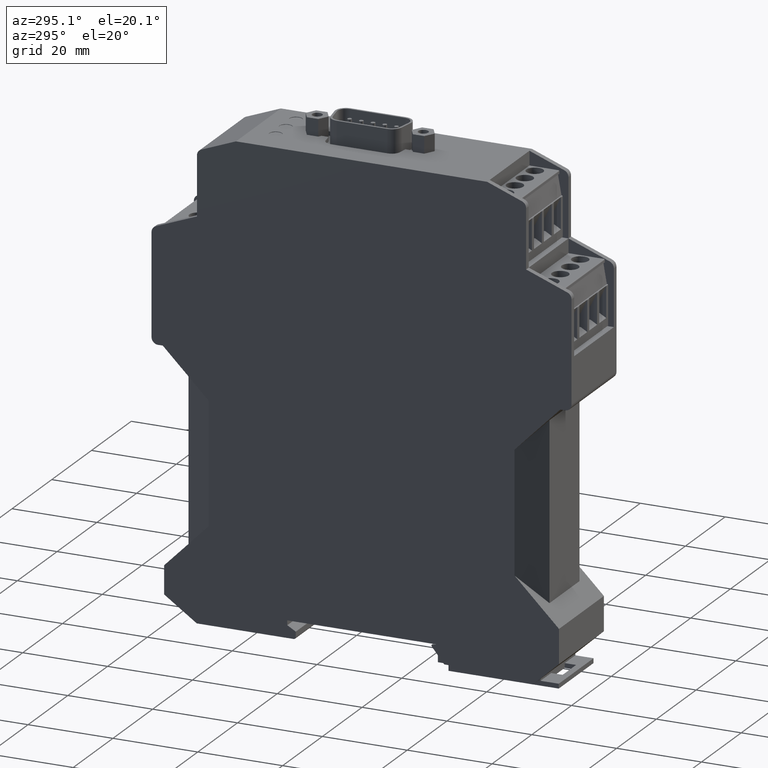
[diagram: clean part render]
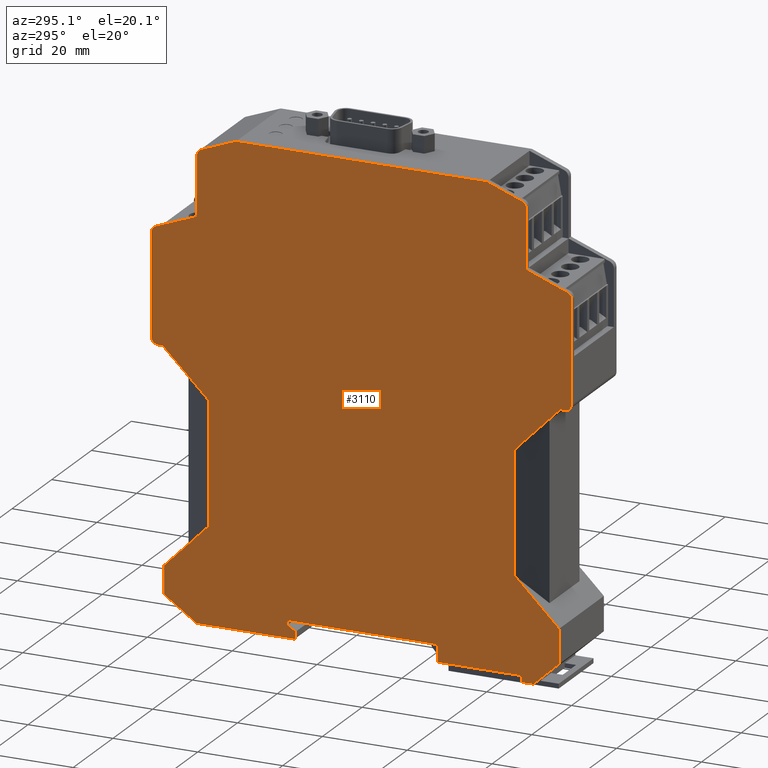
[diagram: same view with one face highlighted and labeled with its STEP entity id]
A machine part, auxiliary view. The second image highlights one B-rep face of the part: STEP entity #3110.
In plain terms, the highlighted planar face has unit normal (-1, 0, -0).
Its self-contained STEP definition (entity closure, byte-faithful):
#10=CARTESIAN_POINT('',(-1.39195321935404E-11,88.500000000059,
3.5527136788005E-15));
#20=DIRECTION('',(1.22460635382238E-16,0.,-1.));
#30=DIRECTION('',(-1.,0.,-1.22460635382238E-16));
#40=AXIS2_PLACEMENT_3D('',#10,#20,#30);
#50=PLANE('',#40);
#60=CARTESIAN_POINT('',(-1.39020883780511E-11,118.362375437126,
-3.5527136788005E-15));
#70=DIRECTION('',(-0.933580426497062,-0.358367949545665,
-1.14326852209251E-16));
#80=VECTOR('',#70,1.);
#90=LINE('',#60,#80);
#100=CARTESIAN_POINT('',(-29.6000000000285,107.000000000059,
-7.105427357601E-15));
#110=VERTEX_POINT('',#100);
#120=CARTESIAN_POINT('',(-37.8375519243559,103.837900079559,
-7.105427357601E-15));
#130=VERTEX_POINT('',#120);
#140=EDGE_CURVE('',#110,#130,#90,.T.);
#150=ORIENTED_EDGE('',*,*,#140,.F.);
#160=CARTESIAN_POINT('',(-37.3000000000285,102.437529439817,
-7.105427357601E-15));
#170=DIRECTION('',(0.,0.,-1.));
#180=DIRECTION('',(-1.,0.,0.));
#190=AXIS2_PLACEMENT_3D('',#160,#170,#180);
#200=CIRCLE('',#190,1.49999999999999);
#210=CARTESIAN_POINT('',(-38.8000000000142,102.437529439802,
-7.105427357601E-15));
#220=VERTEX_POINT('',#210);
#230=EDGE_CURVE('',#220,#130,#200,.T.);
#240=ORIENTED_EDGE('',*,*,#230,.T.);
#250=CARTESIAN_POINT('',(-38.8000000000142,-7.99999999993772,
-7.105427357601E-15));
#260=DIRECTION('',(0.,-1.,-0.));
#270=VECTOR('',#260,1.);
#280=LINE('',#250,#270);
#290=CARTESIAN_POINT('',(-38.8000000000142,88.5000000000611,
-7.105427357601E-15));
#300=VERTEX_POINT('',#290);
#310=EDGE_CURVE('',#220,#300,#280,.T.);
#320=ORIENTED_EDGE('',*,*,#310,.F.);
#330=CARTESIAN_POINT('',(-1.39020883780511E-11,103.367289719729,
-3.5527136788005E-15));
#340=DIRECTION('',(-0.933794721484838,-0.357809192345659,
-1.14353094909613E-16));
#350=VECTOR('',#340,1.);
#360=LINE('',#330,#350);
#370=CARTESIAN_POINT('',(-48.5367137885062,84.7691096698839,
-1.06581410364015E-14));
#380=VERTEX_POINT('',#370);
#390=EDGE_CURVE('',#300,#380,#360,.T.);
#400=ORIENTED_EDGE('',*,*,#390,.F.);
#410=CARTESIAN_POINT('',(-47.999999999988,83.3684175876566,
-1.06581410364015E-14));
#420=DIRECTION('',(0.,0.,1.));
#430=DIRECTION('',(1.,0.,0.));
#440=AXIS2_PLACEMENT_3D('',#410,#420,#430);
#450=CIRCLE('',#440,1.5);
#460=CARTESIAN_POINT('',(-49.4999999999339,83.3684175876573,
-1.06581410364015E-14));
#470=VERTEX_POINT('',#460);
#480=EDGE_CURVE('',#380,#470,#450,.T.);
#490=ORIENTED_EDGE('',*,*,#480,.F.);
#500=CARTESIAN_POINT('',(-49.4999999999075,-7.99999999993772,
-1.06581410364015E-14));
#510=DIRECTION('',(0.,-1.,-0.));
#520=VECTOR('',#510,1.);
#530=LINE('',#500,#520);
#540=CARTESIAN_POINT('',(-49.4999999999994,59.4000000000015,
-1.06581410364015E-14));
#550=VERTEX_POINT('',#540);
#560=EDGE_CURVE('',#470,#550,#530,.T.);
#570=ORIENTED_EDGE('',*,*,#560,.F.);
#580=CARTESIAN_POINT('',(-47.9999999999994,59.4000000000015,
-1.06581410364015E-14));
#590=DIRECTION('',(0.,0.,-1.));
#600=DIRECTION('',(-1.,0.,0.));
#610=AXIS2_PLACEMENT_3D('',#580,#590,#600);
#620=CIRCLE('',#610,1.5);
#630=CARTESIAN_POINT('',(-47.9999999999996,57.9000000000015,
-1.06581410364015E-14));
#640=VERTEX_POINT('',#630);
#650=EDGE_CURVE('',#640,#550,#620,.T.);
#660=ORIENTED_EDGE('',*,*,#650,.T.);
#670=CARTESIAN_POINT('',(-1.39020883780511E-11,57.8999999999968,
-3.5527136788005E-15));
#680=DIRECTION('',(1.,-9.89E-14,1.22460635382238E-16));
#690=VECTOR('',#680,1.);
#700=LINE('',#670,#690);
#710=CARTESIAN_POINT('',(-46.85,57.9000000000014,-1.06581410364015E-14))
;
#720=VERTEX_POINT('',#710);
#730=EDGE_CURVE('',#640,#720,#700,.T.);
#740=ORIENTED_EDGE('',*,*,#730,.F.);
#750=CARTESIAN_POINT('',(-1.39020883780511E-11,11.0500000000157,
-3.5527136788005E-15));
#760=DIRECTION('',(0.707106781186551,-0.707106781186544,
8.65927457071939E-17));
#770=VECTOR('',#760,1.);
#780=LINE('',#750,#770);
#790=CARTESIAN_POINT('',(-36.0499999999998,47.1000000000012,
-7.105427357601E-15));
#800=VERTEX_POINT('',#790);
#810=EDGE_CURVE('',#720,#800,#780,.T.);
#820=ORIENTED_EDGE('',*,*,#810,.F.);
#830=CARTESIAN_POINT('',(-36.0499999999999,-7.99999999993772,
-7.105427357601E-15));
#840=DIRECTION('',(0.,1.,0.));
#850=VECTOR('',#840,1.);
#860=LINE('',#830,#850);
#870=CARTESIAN_POINT('',(-36.0499999999998,18.4999999999992,
-1.06581410364015E-14));
#880=VERTEX_POINT('',#870);
#890=EDGE_CURVE('',#880,#800,#860,.T.);
#900=ORIENTED_EDGE('',*,*,#890,.T.);
#910=CARTESIAN_POINT('',(-1.39020883780511E-11,54.5499999999784,
-7.105427357601E-15));
#920=DIRECTION('',(-0.707106781186613,-0.707106781186482,
-8.65927457072016E-17));
#930=VECTOR('',#920,1.);
#940=LINE('',#910,#930);
#950=CARTESIAN_POINT('',(-46.5499999999168,8.00000000008406,
-1.06581410364015E-14));
#960=VERTEX_POINT('',#950);
#970=EDGE_CURVE('',#880,#960,#940,.T.);
#980=ORIENTED_EDGE('',*,*,#970,.F.);
#990=CARTESIAN_POINT('',(-46.5499999999168,-7.99999999993772,
-1.06581410364015E-14));
#1000=DIRECTION('',(0.,-1.,-0.));
#1010=VECTOR('',#1000,1.);
#1020=LINE('',#990,#1010);
#1030=CARTESIAN_POINT('',(-46.5499999999168,6.3575811282135E-12,
-1.77635683940025E-14));
#1040=VERTEX_POINT('',#1030);
#1050=EDGE_CURVE('',#960,#1040,#1020,.T.);
#1060=ORIENTED_EDGE('',*,*,#1050,.F.);
#1070=CARTESIAN_POINT('',(-1.39020883780511E-11,-42.3181818180724,
-1.06581410364015E-14));
#1080=DIRECTION('',(0.739940073396061,-0.672672793996183,
9.06135315328613E-17));
#1090=VECTOR('',#1080,1.);
#1100=LINE('',#1070,#1090);
#1110=CARTESIAN_POINT('',(-40.4999999999323,-5.49999999997762,
-1.4210854715202E-14));
#1120=VERTEX_POINT('',#1110);
#1130=EDGE_CURVE('',#1040,#1120,#1100,.T.);
#1140=ORIENTED_EDGE('',*,*,#1130,.F.);
#1150=CARTESIAN_POINT('',(-1.39020883780511E-11,-5.49999999997762,
-3.5527136788005E-15));
#1160=DIRECTION('',(1.,0.,1.22460635382238E-16));
#1170=VECTOR('',#1160,1.);
#1180=LINE('',#1150,#1170);
#1190=CARTESIAN_POINT('',(-37.7999999999074,-5.49999999997762,
-7.105427357601E-15));
#1200=VERTEX_POINT('',#1190);
#1210=EDGE_CURVE('',#1120,#1200,#1180,.T.);
#1220=ORIENTED_EDGE('',*,*,#1210,.F.);
#1230=CARTESIAN_POINT('',(-37.7999999999074,-7.99999999993772,
-7.105427357601E-15));
#1240=DIRECTION('',(0.,1.,0.));
#1250=VECTOR('',#1240,1.);
#1260=LINE('',#1230,#1250);
#1270=CARTESIAN_POINT('',(-37.7999999999074,-3.99999999999904,
-7.105427357601E-15));
#1280=VERTEX_POINT('',#1270);
#1290=EDGE_CURVE('',#1200,#1280,#1260,.T.);
#1300=ORIENTED_EDGE('',*,*,#1290,.F.);
#1310=CARTESIAN_POINT('',(-1.39020883780511E-11,-4.00000000000264,
-3.5527136788005E-15));
#1320=DIRECTION('',(1.,-9.53855596613063E-14,1.22460635382238E-16));
#1330=VECTOR('',#1320,1.);
#1340=LINE('',#1310,#1330);
#1350=CARTESIAN_POINT('',(-17.999999999907,-4.00000000000092,
-7.105427357601E-15));
#1360=VERTEX_POINT('',#1350);
#1370=EDGE_CURVE('',#1280,#1360,#1340,.T.);
#1380=ORIENTED_EDGE('',*,*,#1370,.F.);
#1390=CARTESIAN_POINT('',(-17.9999999999071,-7.99999999993772,
-7.105427357601E-15));
#1400=DIRECTION('',(2.13E-14,1.,2.60841153364166E-30));
#1410=VECTOR('',#1400,1.);
#1420=LINE('',#1390,#1410);
#1430=CARTESIAN_POINT('',(-17.9999999999069,7.86926079854311E-13,
-7.105427357601E-15));
#1440=VERTEX_POINT('',#1430);
#1450=EDGE_CURVE('',#1360,#1440,#1420,.T.);
#1460=ORIENTED_EDGE('',*,*,#1450,.F.);
#1470=CARTESIAN_POINT('',(-1.39020883780511E-11,7.86926079854311E-13,
-3.5527136788005E-15));
#1480=DIRECTION('',(1.,0.,1.22460635382238E-16));
#1490=VECTOR('',#1480,1.);
#1500=LINE('',#1470,#1490);
#1510=CARTESIAN_POINT('',(17.5000000000944,7.86926079854311E-13,0.));
#1520=VERTEX_POINT('',#1510);
#1530=EDGE_CURVE('',#1440,#1520,#1500,.T.);
#1540=ORIENTED_EDGE('',*,*,#1530,.F.);
#1550=CARTESIAN_POINT('',(17.5000000000945,-7.99999999993772,0.));
#1560=DIRECTION('',(4.E-16,-1.,4.89842541528951E-32));
#1570=VECTOR('',#1560,1.);
#1580=LINE('',#1550,#1570);
#1590=CARTESIAN_POINT('',(17.5000000000945,-1.09989609279391,0.));
#1600=VERTEX_POINT('',#1590);
#1610=EDGE_CURVE('',#1520,#1600,#1580,.T.);
#1620=ORIENTED_EDGE('',*,*,#1610,.F.);
#1630=CARTESIAN_POINT('',(-1.39020883780511E-11,-11.2035258036739,
-7.105427357601E-15));
#1640=DIRECTION('',(-0.86602540378446,-0.499999999999962,
-1.06054021204604E-16));
#1650=VECTOR('',#1640,1.);
#1660=LINE('',#1630,#1650);
#1670=CARTESIAN_POINT('',(15.5000000000943,-2.25459663117312,0.));
#1680=VERTEX_POINT('',#1670);
#1690=EDGE_CURVE('',#1600,#1680,#1660,.T.);
#1700=ORIENTED_EDGE('',*,*,#1690,.F.);
#1710=CARTESIAN_POINT('',(15.5000000000952,-7.99999999993772,0.));
#1720=DIRECTION('',(1.54E-13,-1.,1.88589378488646E-29));
#1730=VECTOR('',#1720,1.);
#1740=LINE('',#1710,#1730);
#1750=CARTESIAN_POINT('',(15.5000000000945,-3.49999999999909,0.));
#1760=VERTEX_POINT('',#1750);
#1770=EDGE_CURVE('',#1680,#1760,#1740,.T.);
#1780=ORIENTED_EDGE('',*,*,#1770,.F.);
#1790=CARTESIAN_POINT('',(16.0000000000943,-3.49999999999909,0.));
#1800=DIRECTION('',(0.,0.,-1.));
#1810=DIRECTION('',(-1.,0.,0.));
#1820=AXIS2_PLACEMENT_3D('',#1790,#1800,#1810);
#1830=CIRCLE('',#1820,0.499999999999808);
#1840=CARTESIAN_POINT('',(16.0000000000944,-3.99999999999914,0.));
#1850=VERTEX_POINT('',#1840);
#1860=EDGE_CURVE('',#1850,#1760,#1830,.T.);
#1870=ORIENTED_EDGE('',*,*,#1860,.T.);
#1880=CARTESIAN_POINT('',(-1.39020883780511E-11,-3.99999999999914,
-3.5527136788005E-15));
#1890=DIRECTION('',(1.,0.,1.22460635382238E-16));
#1900=VECTOR('',#1890,1.);
#1910=LINE('',#1880,#1900);
#1920=CARTESIAN_POINT('',(38.838000763677,-3.99999999999914,0.));
#1930=VERTEX_POINT('',#1920);
#1940=EDGE_CURVE('',#1850,#1930,#1910,.T.);
#1950=ORIENTED_EDGE('',*,*,#1940,.F.);
#1960=CARTESIAN_POINT('',(-1.39020883780511E-11,-31.1946609037305,
-7.105427357601E-15));
#1970=DIRECTION('',(0.819152044288986,0.573576436351054,
1.00313879818288E-16));
#1980=VECTOR('',#1970,1.);
#1990=LINE('',#1960,#1980);
#2000=CARTESIAN_POINT('',(46.5500000000977,1.40000000001026,
3.5527136788005E-15));
#2010=VERTEX_POINT('',#2000);
#2020=EDGE_CURVE('',#1930,#2010,#1990,.T.);
#2030=ORIENTED_EDGE('',*,*,#2020,.F.);
#2040=CARTESIAN_POINT('',(46.5500000000976,-7.99999999993772,
3.5527136788005E-15));
#2050=DIRECTION('',(0.,1.,0.));
#2060=VECTOR('',#2050,1.);
#2070=LINE('',#2040,#2060);
#2080=CARTESIAN_POINT('',(46.5500000000977,7.99999999999633,
3.5527136788005E-15));
#2090=VERTEX_POINT('',#2080);
#2100=EDGE_CURVE('',#2010,#2090,#2070,.T.);
#2110=ORIENTED_EDGE('',*,*,#2100,.F.);
#2120=CARTESIAN_POINT('',(-1.39020883780511E-11,54.5500000000981,
-3.5527136788005E-15));
#2130=DIRECTION('',(-0.707106781186613,0.707106781186482,
-8.65927457072016E-17));
#2140=VECTOR('',#2130,1.);
#2150=LINE('',#2120,#2140);
#2160=CARTESIAN_POINT('',(36.0500000000917,18.4999999999992,0.));
#2170=VERTEX_POINT('',#2160);
#2180=EDGE_CURVE('',#2090,#2170,#2150,.T.);
#2190=ORIENTED_EDGE('',*,*,#2180,.F.);
#2200=CARTESIAN_POINT('',(36.0500000000919,-7.99999999993772,0.));
#2210=DIRECTION('',(0.,1.,0.));
#2220=VECTOR('',#2210,1.);
#2230=LINE('',#2200,#2220);
#2240=CARTESIAN_POINT('',(36.0500000000917,47.1000000000001,0.));
#2250=VERTEX_POINT('',#2240);
#2260=EDGE_CURVE('',#2170,#2250,#2230,.T.);
#2270=ORIENTED_EDGE('',*,*,#2260,.F.);
#2280=CARTESIAN_POINT('',(-1.39020883780511E-11,11.0499999998948,
-3.5527136788005E-15));
#2290=DIRECTION('',(0.707106781186551,0.707106781186544,
8.65927457071939E-17));
#2300=VECTOR('',#2290,1.);
#2310=LINE('',#2280,#2300);
#2320=CARTESIAN_POINT('',(46.8500000000933,57.9000000000015,
3.5527136788005E-15));
#2330=VERTEX_POINT('',#2320);
#2340=EDGE_CURVE('',#2250,#2330,#2310,.T.);
#2350=ORIENTED_EDGE('',*,*,#2340,.F.);
#2360=CARTESIAN_POINT('',(-1.39020883780511E-11,57.9000000000012,
-3.5527136788005E-15));
#2370=DIRECTION('',(1.,6.00576601826644E-15,1.22460635382238E-16));
#2380=VECTOR('',#2370,1.);
#2390=LINE('',#2360,#2380);
#2400=CARTESIAN_POINT('',(48.0000000000926,57.9000000000015,
3.5527136788005E-15));
#2410=VERTEX_POINT('',#2400);
#2420=EDGE_CURVE('',#2330,#2410,#2390,.T.);
#2430=ORIENTED_EDGE('',*,*,#2420,.F.);
#2440=CARTESIAN_POINT('',(48.0000000000925,59.4000000000015,
3.5527136788005E-15));
#2450=DIRECTION('',(0.,0.,-1.));
#2460=DIRECTION('',(-1.,0.,0.));
#2470=AXIS2_PLACEMENT_3D('',#2440,#2450,#2460);
#2480=CIRCLE('',#2470,1.5);
#2490=CARTESIAN_POINT('',(49.5000000000006,59.4000000000015,
3.5527136788005E-15));
#2500=VERTEX_POINT('',#2490);
#2510=EDGE_CURVE('',#2500,#2410,#2480,.T.);
#2520=ORIENTED_EDGE('',*,*,#2510,.T.);
#2530=CARTESIAN_POINT('',(49.4999999999431,-7.99999999993772,
3.5527136788005E-15));
#2540=DIRECTION('',(0.,1.,0.));
#2550=VECTOR('',#2540,1.);
#2560=LINE('',#2530,#2550);
#2570=CARTESIAN_POINT('',(49.4999999999665,83.3684175876573,
3.5527136788005E-15));
#2580=VERTEX_POINT('',#2570);
#2590=EDGE_CURVE('',#2500,#2580,#2560,.T.);
#2600=ORIENTED_EDGE('',*,*,#2590,.F.);
#2610=CARTESIAN_POINT('',(47.9999999999665,83.3684175876561,
3.5527136788005E-15));
#2620=DIRECTION('',(0.,0.,-1.));
#2630=DIRECTION('',(-1.,0.,0.));
#2640=AXIS2_PLACEMENT_3D('',#2610,#2620,#2630);
#2650=CIRCLE('',#2640,1.49999999999999);
#2660=CARTESIAN_POINT('',(48.5367137884849,84.7691096698835,
3.5527136788005E-15));
#2670=VERTEX_POINT('',#2660);
#2680=EDGE_CURVE('',#2670,#2580,#2650,.T.);
#2690=ORIENTED_EDGE('',*,*,#2680,.T.);
#2700=CARTESIAN_POINT('',(-1.39020883780511E-11,103.367289719734,
-3.5527136788005E-15));
#2710=DIRECTION('',(-0.933794721484838,0.357809192345659,
-1.14353094909613E-16));
#2720=VECTOR('',#2710,1.);
#2730=LINE('',#2700,#2720);
#2740=CARTESIAN_POINT('',(38.7999999999999,88.5000000000611,0.));
#2750=VERTEX_POINT('',#2740);
#2760=EDGE_CURVE('',#2670,#2750,#2730,.T.);
#2770=ORIENTED_EDGE('',*,*,#2760,.F.);
#2780=CARTESIAN_POINT('',(38.7999999999999,-7.99999999993772,0.));
#2790=DIRECTION('',(0.,1.,0.));
#2800=VECTOR('',#2790,1.);
#2810=LINE('',#2780,#2800);
#2820=CARTESIAN_POINT('',(38.8000000000142,102.437529439802,0.));
#2830=VERTEX_POINT('',#2820);
#2840=EDGE_CURVE('',#2750,#2830,#2810,.T.);
#2850=ORIENTED_EDGE('',*,*,#2840,.F.);
#2860=CARTESIAN_POINT('',(37.3000000000142,102.437529439817,0.));
#2870=DIRECTION('',(0.,0.,-1.));
#2880=DIRECTION('',(-1.,0.,0.));
#2890=AXIS2_PLACEMENT_3D('',#2860,#2870,#2880);
#2900=CIRCLE('',#2890,1.49999999999999);
#2910=CARTESIAN_POINT('',(37.8375519243449,103.837900079568,0.));
#2920=VERTEX_POINT('',#2910);
#2930=EDGE_CURVE('',#2920,#2830,#2900,.T.);
#2940=ORIENTED_EDGE('',*,*,#2930,.T.);
#2950=CARTESIAN_POINT('',(-1.39020883780511E-11,118.362375437131,
-3.5527136788005E-15));
#2960=DIRECTION('',(-0.933580426497062,0.358367949545665,
-1.14326852209251E-16));
#2970=VECTOR('',#2960,1.);
#2980=LINE('',#2950,#2970);
#2990=CARTESIAN_POINT('',(29.6000000000141,107.000000000059,0.));
#3000=VERTEX_POINT('',#2990);
#3010=EDGE_CURVE('',#2920,#3000,#2980,.T.);
#3020=ORIENTED_EDGE('',*,*,#3010,.F.);
#3030=CARTESIAN_POINT('',(-1.39020883780511E-11,107.000000000059,
-3.5527136788005E-15));
#3040=DIRECTION('',(-1.,0.,-1.22460635382238E-16));
#3050=VECTOR('',#3040,1.);
#3060=LINE('',#3030,#3050);
#3070=EDGE_CURVE('',#3000,#110,#3060,.T.);
#3080=ORIENTED_EDGE('',*,*,#3070,.F.);
#3090=EDGE_LOOP('',(#3080,#3020,#2940,#2850,#2770,#2690,#2600,#2520,
#2430,#2350,#2270,#2190,#2110,#2030,#1950,#1870,#1780,#1700,#1620,#1540,
#1460,#1380,#1300,#1220,#1140,#1060,#980,#900,#820,#740,#660,#570,#490,
#400,#320,#240,#150));
#3100=FACE_OUTER_BOUND('',#3090,.T.);
#3110=ADVANCED_FACE('',(#3100),#50,.T.);